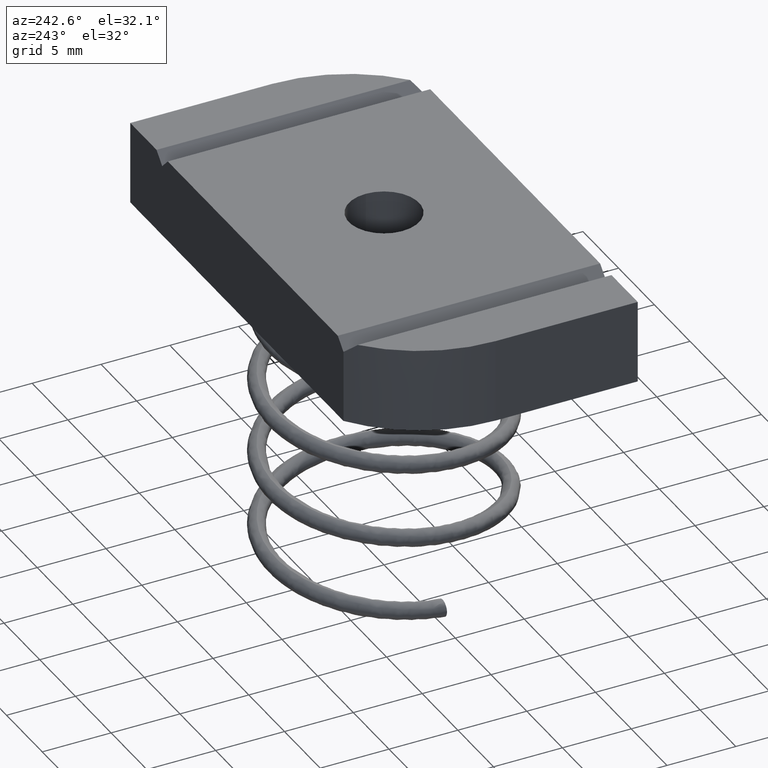
[diagram: clean part render]
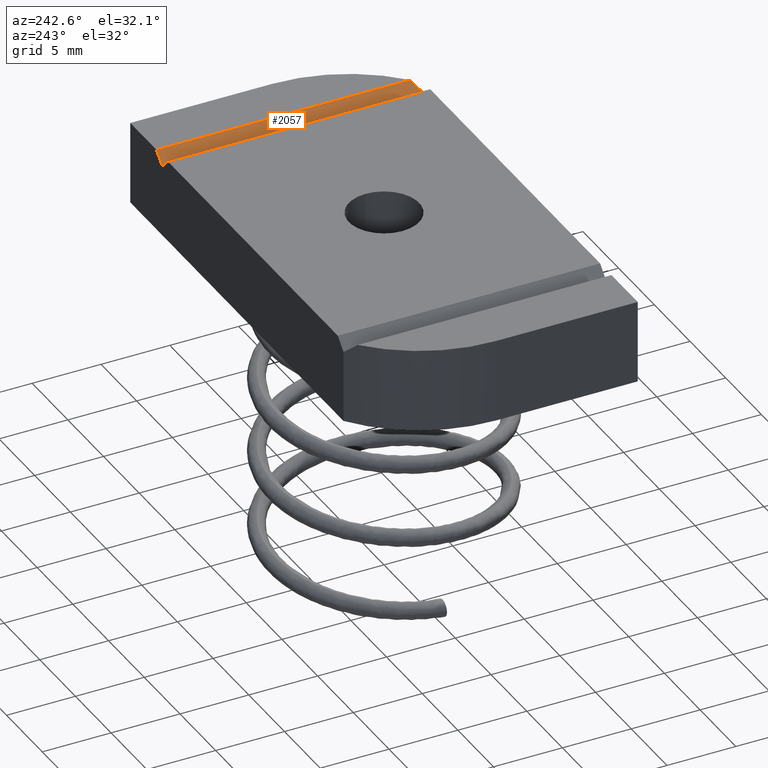
[diagram: same view with one face highlighted and labeled with its STEP entity id]
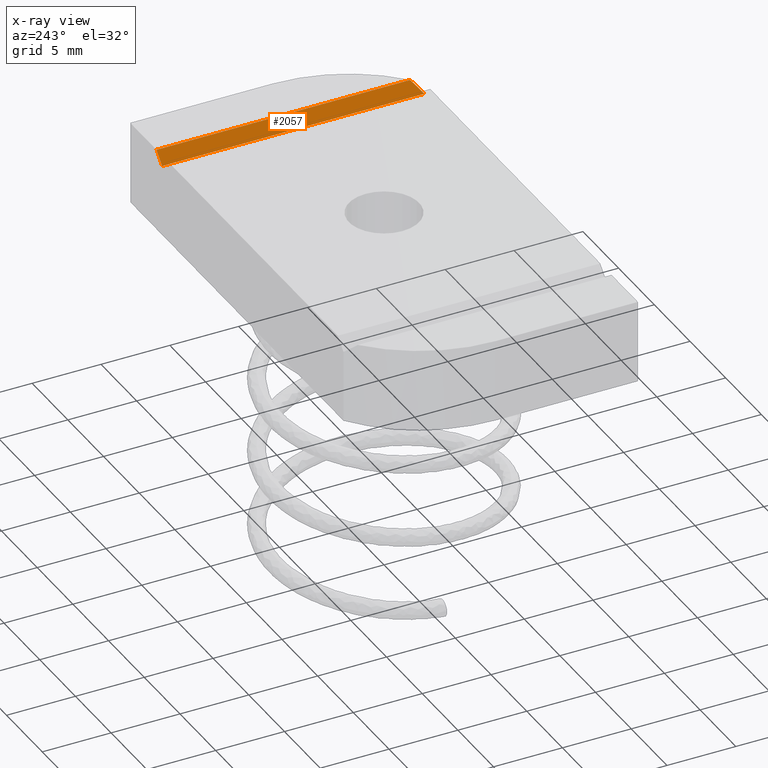
[diagram: x-ray of the same camera — body ghosted, the highlighted face saturated]
A machine part, auxiliary view. The second image highlights one B-rep face of the part: STEP entity #2057.
The next image is the same camera in x-ray: the body ghosted, the highlighted face saturated — about 0% of this face is hidden behind the body in this view.
In plain terms, the highlighted planar face has unit normal (0.7071, 0, -0.7071).
Its self-contained STEP definition (entity closure, byte-faithful):
#191 = EDGE_CURVE ( 'NONE', #1106, #944, #754, .T. ) ;
#207 = EDGE_CURVE ( 'NONE', #1021, #1106, #619, .T. ) ;
#209 = ORIENTED_EDGE ( 'NONE', *, *, #1333, .F. ) ;
#219 = ORIENTED_EDGE ( 'NONE', *, *, #191, .F. ) ;
#227 = ORIENTED_EDGE ( 'NONE', *, *, #207, .F. ) ;
#229 = ORIENTED_EDGE ( 'NONE', *, *, #1325, .T. ) ;
#253 = EDGE_LOOP ( 'NONE', ( #219, #227, #229, #209 ) ) ;
#284 = AXIS2_PLACEMENT_3D ( 'NONE', #795, #413, #404 ) ;
#404 = DIRECTION ( 'NONE',  ( -0.7071067811865434600, 0.0000000000000000000, -0.7071067811865515700 ) ) ;
#413 = DIRECTION ( 'NONE',  ( 0.7071067811865515700, 0.0000000000000000000, -0.7071067811865434600 ) ) ;
#619 = LINE ( 'NONE', #1167, #628 ) ;
#628 = VECTOR ( 'NONE', #961, 39.37007874015748900 ) ;
#730 = LINE ( 'NONE', #999, #731 ) ;
#731 = VECTOR ( 'NONE', #1141, 39.37007874015748100 ) ;
#744 = VECTOR ( 'NONE', #941, 39.37007874015748100 ) ;
#754 = LINE ( 'NONE', #1038, #744 ) ;
#786 = PLANE ( 'NONE',  #284 ) ;
#792 = CARTESIAN_POINT ( 'NONE',  ( 0.5000000000000001100, -0.3750000000000000600, 0.08774999999999987000 ) ) ;
#793 = CARTESIAN_POINT ( 'NONE',  ( 0.5108032315010989600, -0.3672059138483087000, 0.09855323150109894500 ) ) ;
#794 = CARTESIAN_POINT ( 'NONE',  ( 0.5212276018830124300, -0.3589119345894123400, 0.1089776018830126100 ) ) ;
#795 = CARTESIAN_POINT ( 'NONE',  ( 0.5000000000000000000, 0.3750000000000000600, 0.08774999999999987000 ) ) ;
#918 = VERTEX_POINT ( 'NONE', #1091 ) ;
#941 = DIRECTION ( 'NONE',  ( -0.0000000000000000000, -1.000000000000000000, -0.0000000000000000000 ) ) ;
#944 = VERTEX_POINT ( 'NONE', #1098 ) ;
#961 = DIRECTION ( 'NONE',  ( 0.7071067811865433500, 0.0000000000000000000, 0.7071067811865515700 ) ) ;
#999 = CARTESIAN_POINT ( 'NONE',  ( 0.5000000000000000000, 0.3750000000000000600, 0.08774999999999987000 ) ) ;
#1021 = VERTEX_POINT ( 'NONE', #1044 ) ;
#1038 = CARTESIAN_POINT ( 'NONE',  ( 0.5312499999999997800, 0.3750000000000000600, 0.1189999999999999900 ) ) ;
#1044 = CARTESIAN_POINT ( 'NONE',  ( 0.5000000000000000000, 0.3750000000000000600, 0.08774999999999987000 ) ) ;
#1091 = CARTESIAN_POINT ( 'NONE',  ( 0.5000000000000001100, -0.3750000000000000600, 0.08774999999999987000 ) ) ;
#1095 = CARTESIAN_POINT ( 'NONE',  ( 0.5312499999999997800, 0.3750000000000000600, 0.1189999999999999900 ) ) ;
#1098 = CARTESIAN_POINT ( 'NONE',  ( 0.5312499999999997800, -0.3501364502272287200, 0.1189999999999999900 ) ) ;
#1106 = VERTEX_POINT ( 'NONE', #1095 ) ;
#1114 = CARTESIAN_POINT ( 'NONE',  ( 0.5312499999999997800, -0.3501364502272287200, 0.1189999999999999900 ) ) ;
#1141 = DIRECTION ( 'NONE',  ( -0.0000000000000000000, -1.000000000000000000, -0.0000000000000000000 ) ) ;
#1167 = CARTESIAN_POINT ( 'NONE',  ( 0.5000000000000000000, 0.3750000000000000600, 0.08774999999999987000 ) ) ;
#1325 = EDGE_CURVE ( 'NONE', #1021, #918, #730, .T. ) ;
#1333 = EDGE_CURVE ( 'NONE', #944, #918, #2050, .T. ) ;
#1754 = FACE_OUTER_BOUND ( 'NONE', #253, .T. ) ;
#2050 =( BOUNDED_CURVE ( )  B_SPLINE_CURVE ( 3, ( #1114, #794, #793, #792 ),
 .UNSPECIFIED., .F., .T. ) 
 B_SPLINE_CURVE_WITH_KNOTS ( ( 4, 4 ),
 ( 3.993226455637453500, 4.087405860915651200 ),
 .UNSPECIFIED. ) 
 CURVE ( )  GEOMETRIC_REPRESENTATION_ITEM ( )  RATIONAL_B_SPLINE_CURVE ( ( 1.000000000000000000, 0.9992609898761521900, 0.9992609898761521900, 1.000000000000000000 ) ) 
 REPRESENTATION_ITEM ( '' )  );
#2057 = ADVANCED_FACE ( 'NONE', ( #1754 ), #786, .F. ) ;